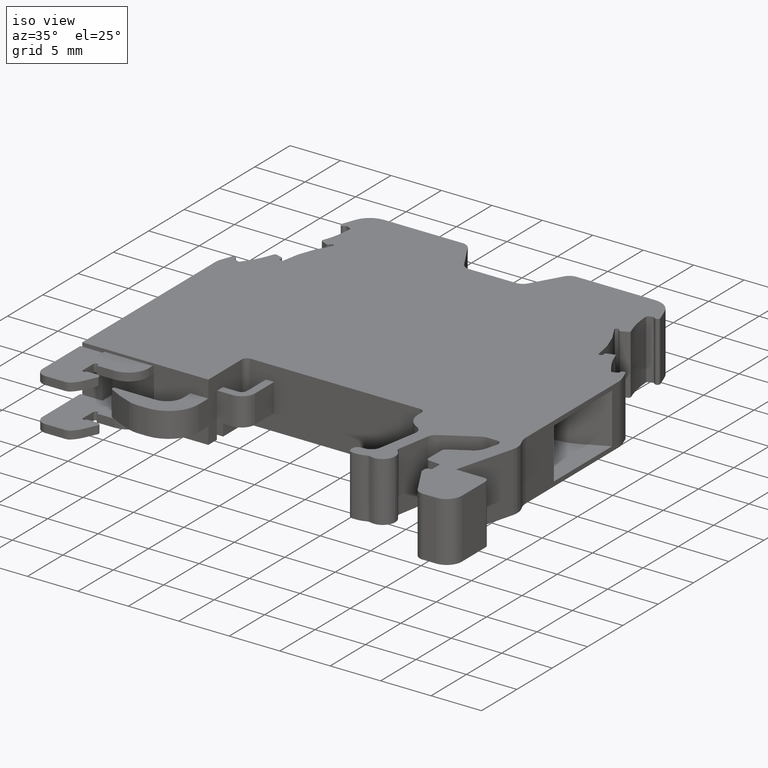
[diagram: clean part render]
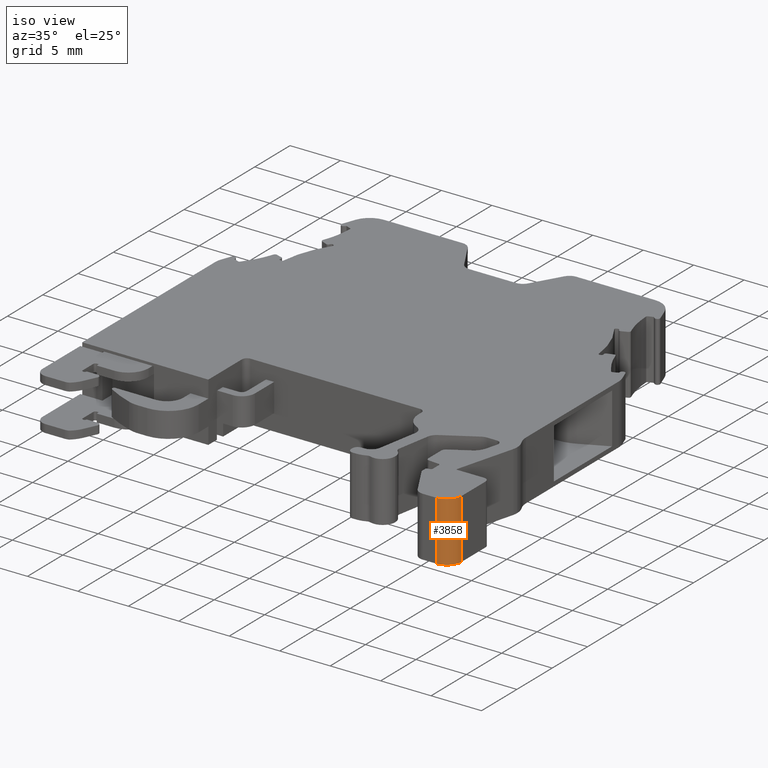
[diagram: same view with one face highlighted and labeled with its STEP entity id]
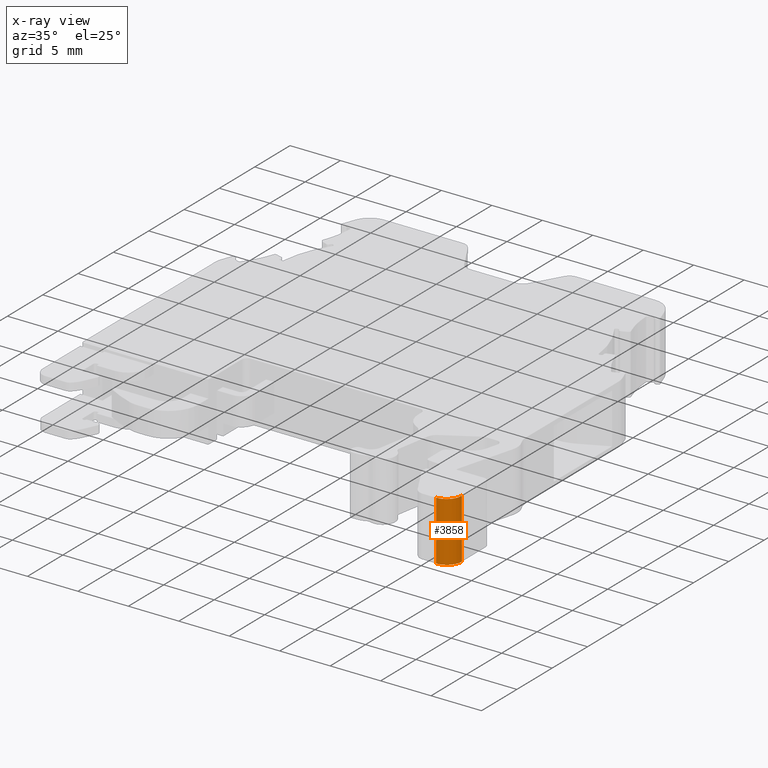
[diagram: x-ray of the same camera — body ghosted, the highlighted face saturated]
A machine part, iso view. The second image highlights one B-rep face of the part: STEP entity #3858.
The next image is the same camera in x-ray: the body ghosted, the highlighted face saturated — about 0% of this face is hidden behind the body in this view.
In plain terms, the highlighted cylindrical surface (edge-blend (fillet) strip) has radius 1.5 mm, axis along (0, 0, 1).
Its self-contained STEP definition (entity closure, byte-faithful):
#273 = EDGE_LOOP ( 'NONE', ( #7030, #6986, #7031, #6987 ) ) ;
#1247 = VERTEX_POINT ( 'NONE', #9673 ) ;
#1390 = AXIS2_PLACEMENT_3D ( 'NONE', #7496, #7505, #7498 ) ;
#1414 = CIRCLE ( 'NONE', #1390, 1.499999999998724600 ) ;
#1449 = VECTOR ( 'NONE', #7641, 1000.000000000000000 ) ;
#1481 = VECTOR ( 'NONE', #7445, 1000.000000000000000 ) ;
#1602 = AXIS2_PLACEMENT_3D ( 'NONE', #4753, #4755, #4762 ) ;
#2375 = VERTEX_POINT ( 'NONE', #9727 ) ;
#2600 = CARTESIAN_POINT ( 'NONE',  ( 1708.373507243983600, 325.9647653162822400, -3.049999999943105300 ) ) ;
#2602 = CARTESIAN_POINT ( 'NONE',  ( 1707.628935714540800, 324.6540825312191600, -3.049999999943105300 ) ) ;
#2608 = CARTESIAN_POINT ( 'NONE',  ( 1708.334466258987000, 325.5721402872107400, -3.049999999943105300 ) ) ;
#2611 = CARTESIAN_POINT ( 'NONE',  ( 1708.373507243984000, 325.7684125729003300, -3.049999999943105300 ) ) ;
#2619 = CARTESIAN_POINT ( 'NONE',  ( 1708.184186826515300, 325.2093336431937600, -3.049999999943105300 ) ) ;
#2628 = CARTESIAN_POINT ( 'NONE',  ( 1708.073007507581900, 325.0429420337879900, -3.049999999943105300 ) ) ;
#2634 = CARTESIAN_POINT ( 'NONE',  ( 1707.795327323946800, 324.7652618501531900, -3.049999999943105300 ) ) ;
#2639 = CARTESIAN_POINT ( 'NONE',  ( 1706.873507243984900, 324.4647621137504000, -3.049999999943103100 ) ) ;
#2646 = CARTESIAN_POINT ( 'NONE',  ( 1707.266129070523400, 324.5038030987482800, -3.049999999943105800 ) ) ;
#2651 = CARTESIAN_POINT ( 'NONE',  ( 1707.069856784834200, 324.4647621137507900, -3.049999999943104900 ) ) ;
#3401 = CARTESIAN_POINT ( 'NONE',  ( 1706.873507243984900, 324.4647621137503400, 2.850000000059717200 ) ) ;
#3498 = CARTESIAN_POINT ( 'NONE',  ( 1708.373507243996800, 325.9647658408350100, 2.850000000059719900 ) ) ;
#3669 = EDGE_CURVE ( 'NONE', #6055, #6155, #1414, .T. ) ;
#3701 = EDGE_CURVE ( 'NONE', #6155, #2375, #7649, .T. ) ;
#3728 = EDGE_CURVE ( 'NONE', #6055, #1247, #7462, .T. ) ;
#3858 = ADVANCED_FACE ( 'NONE', ( #4761 ), #4760, .T. ) ;
#4302 = EDGE_CURVE ( 'NONE', #1247, #2375, #6483, .T. ) ;
#4753 = CARTESIAN_POINT ( 'NONE',  ( 1706.873507243985200, 325.9647621137495400, -62.07273415799103600 ) ) ;
#4755 = DIRECTION ( 'NONE',  ( 0.0000000000000000000, 0.0000000000000000000, 1.000000000000000000 ) ) ;
#4760 = CYLINDRICAL_SURFACE ( 'NONE', #1602, 1.499999999998724600 ) ;
#4761 = FACE_OUTER_BOUND ( 'NONE', #273, .T. ) ;
#4762 = DIRECTION ( 'NONE',  ( 1.000000000000000000, 0.0000000000000000000, 0.0000000000000000000 ) ) ;
#6055 = VERTEX_POINT ( 'NONE', #3401 ) ;
#6155 = VERTEX_POINT ( 'NONE', #3498 ) ;
#6483 = B_SPLINE_CURVE_WITH_KNOTS ( 'NONE', 3,
 ( #2639, #2651, #2646, #2602, #2634, #2628, #2619, #2608, #2611, #2600 ),
 .UNSPECIFIED., .F., .F.,
 ( 4, 2, 2, 2, 4 ),
 ( 0.0000000000000000000, 0.2500000000000000000, 0.5000000000000000000, 0.7500000000000000000, 1.000000000000000000 ),
 .UNSPECIFIED. ) ;
#6986 = ORIENTED_EDGE ( 'NONE', *, *, #3701, .F. ) ;
#6987 = ORIENTED_EDGE ( 'NONE', *, *, #3728, .T. ) ;
#7030 = ORIENTED_EDGE ( 'NONE', *, *, #4302, .T. ) ;
#7031 = ORIENTED_EDGE ( 'NONE', *, *, #3669, .F. ) ;
#7436 = CARTESIAN_POINT ( 'NONE',  ( 1706.873507243984900, 324.4647621137507900, -62.07273415799103600 ) ) ;
#7445 = DIRECTION ( 'NONE',  ( -0.0000000000000000000, -0.0000000000000000000, -1.000000000000000000 ) ) ;
#7462 = LINE ( 'NONE', #7436, #1481 ) ;
#7496 = CARTESIAN_POINT ( 'NONE',  ( 1706.873507243985200, 325.9647621137495400, 2.850000000059714500 ) ) ;
#7498 = DIRECTION ( 'NONE',  ( 1.000000000000000000, 0.0000000000000000000, 0.0000000000000000000 ) ) ;
#7505 = DIRECTION ( 'NONE',  ( 0.0000000000000000000, 0.0000000000000000000, 1.000000000000000000 ) ) ;
#7641 = DIRECTION ( 'NONE',  ( -0.0000000000000000000, -0.0000000000000000000, -1.000000000000000000 ) ) ;
#7646 = CARTESIAN_POINT ( 'NONE',  ( 1708.373507243993600, 325.9647662549555800, -62.07273415799103600 ) ) ;
#7649 = LINE ( 'NONE', #7646, #1449 ) ;
#9673 = CARTESIAN_POINT ( 'NONE',  ( 1706.873507243984900, 324.4647621137504000, -3.049999999943103100 ) ) ;
#9727 = CARTESIAN_POINT ( 'NONE',  ( 1708.373507243983600, 325.9647653162822400, -3.049999999943105300 ) ) ;